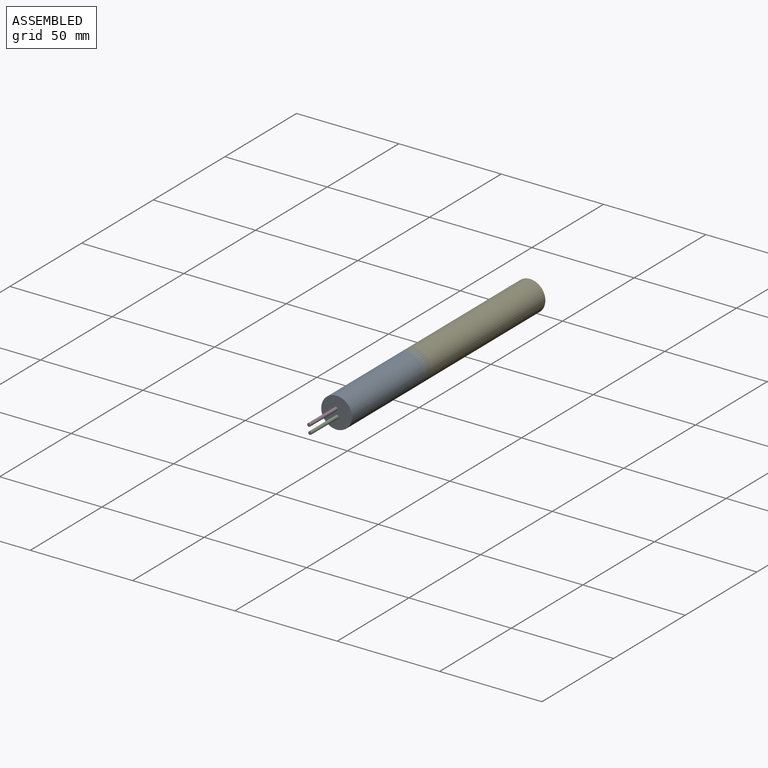
[diagram: assembled view]
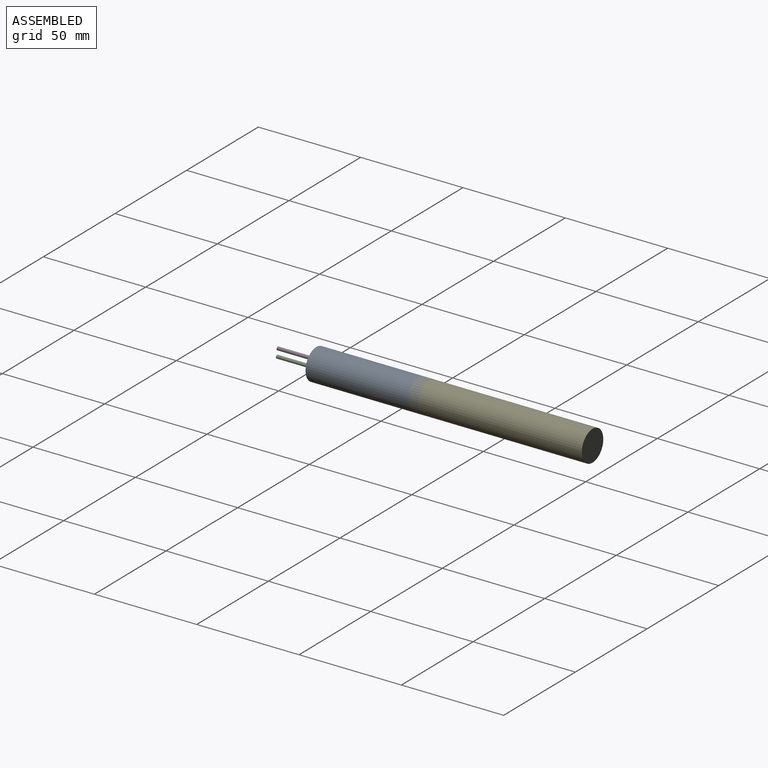
[diagram: assembled view, second angle]
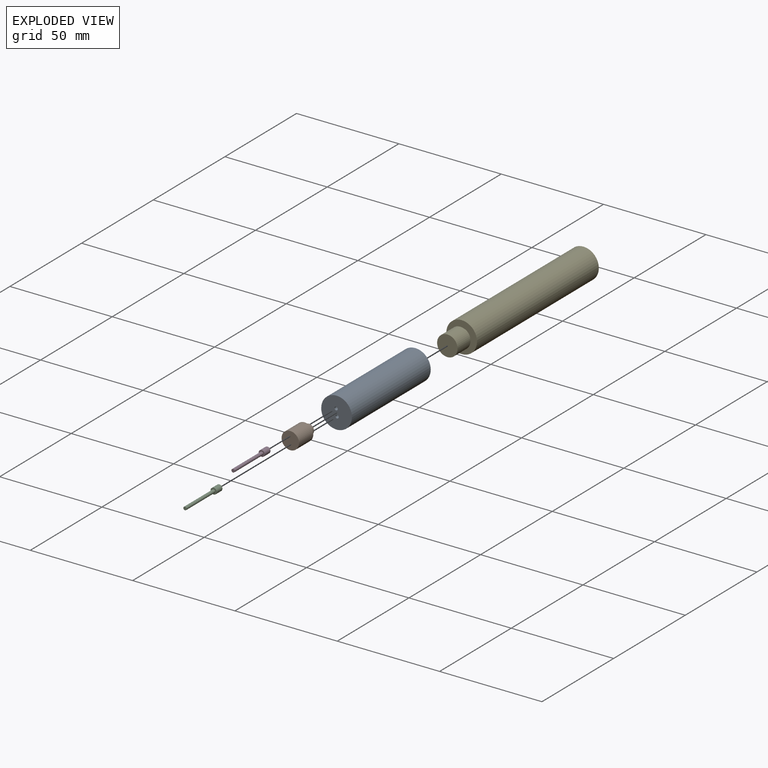
[diagram: exploded view]
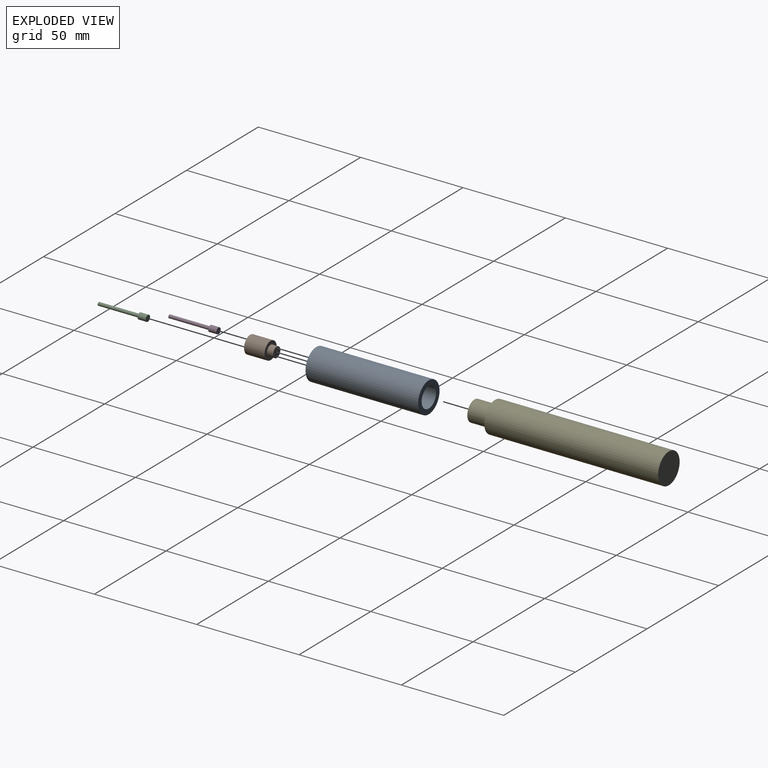
[diagram: exploded view, second angle]
ASSEMBLY  parts=5 mates=7
PART A: 9 faces, bbox 15x55x15 mm
  f0: cylinder r=4.25mm len=35mm, axis (0,1,0), area 934.6mm2, adj f6,f8
  f1: cylinder r=7.5mm len=55mm, axis (0,1,0), area 2591.8mm2, adj f2,f3
  f2: plane 15x15mm, normal (0,-1,0), area 172.7mm2, adj f1,f4,f5
  f3: plane 15x15mm, normal (0,1,0), area 98.2mm2, adj f1,f7
  f4: cylinder r=0.8mm len=5mm, axis (0,-1,0), area 25.1mm2, adj f2,f6
  f5: cylinder r=0.8mm len=5mm, axis (0,-1,0), area 25.1mm2, adj f2,f6
  f6: plane 8.5x8.5mm, normal (0,1,0), area 52.7mm2, adj f0,f4,f5
  f7: cylinder r=5mm len=15mm, axis (0,1,0), area 471.2mm2, adj f3,f8
  f8: plane 10x10mm, normal (0,1,0), area 21.8mm2, adj f0,f7
PART B: 5 faces, bbox 8.5x13x8.5 mm
  f0: cylinder r=4.25mm len=10mm, axis (0,1,0), area 267mm2, adj f1,f2
  f1: plane 8.5x8.5mm, normal (0,-1,0), area 37.1mm2, adj f0,f3
  f2: plane 8.5x8.5mm, normal (0,1,0), area 56.7mm2, adj f0
  f3: cylinder r=2.5mm len=5mm, axis (0,1,0), area 47.1mm2, adj f1,f4
  f4: plane 5x5mm, normal (0,-1,0), area 19.6mm2, adj f3
PART C: 5 faces, bbox 3x24x3 mm
  f0: cylinder r=0.8mm len=20mm, axis (0,1,0), area 100.5mm2, adj f1,f4
  f1: plane 1.6x1.6mm, normal (0,-1,0), area 2mm2, adj f0
  f2: cylinder r=1.5mm len=4mm, axis (0,-1,0), area 37.7mm2, adj f3,f4
  f3: plane 3x3mm, normal (0,1,0), area 7.1mm2, adj f2
  f4: plane 3x3mm, normal (0,-1,0), area 5.1mm2, adj f0,f2
PART D: same geometry as C
PART E: 7 faces, bbox 15x95x15 mm
  f0: cylinder r=7.5mm len=85mm, axis (0,1,0), area 4005.5mm2, adj f1,f2
  f1: plane 15x15mm, normal (0,-1,0), area 120mm2, adj f0,f3
  f2: plane 15x15mm, normal (0,1,0), area 176.7mm2, adj f0
  f3: cylinder r=4.25mm len=8.5mm, axis (0,1,0), area 26.7mm2, adj f1,f6
  f4: cylinder r=5mm len=10mm, axis (0,1,0), area 282.7mm2, adj f5,f6
  f5: plane 10x10mm, normal (0,-1,0), area 78.5mm2, adj f4
  f6: plane 10x10mm, normal (0,1,0), area 21.8mm2, adj f3,f4
PLACE A rot(axis=(0,1,0),82.4deg) t=(37.76,64.81,-23.86)mm
PLACE B rot(axis=(0.75,0,-0.66),180deg) t=(37.76,14.81,-23.86)mm
PLACE C t=(38,10.81,-25.59)mm
PLACE D t=(37.53,10.81,-22.12)mm
PLACE E t=(37.76,144.81,-23.86)mm
MATE planar D.f2 <-> B.f0  axis (0,1,0) through (37.53,14.81,-22.12)mm
MATE slider B.f0 <-> A.f0  axis (0,-1,0) through (37.76,14.81,-23.86)mm
MATE revolute E.f4 <-> A.f0  axis (0,-1,0) through (37.76,49.81,-23.86)mm
MATE planar B.f0 <-> C.f2  axis (0,-1,0) through (37.76,14.81,-23.86)mm
MATE cylindrical D.f0 <-> A.f5  axis (0,1,0) through (37.53,0.81,-22.12)mm
MATE cylindrical C.f0 <-> A.f4  axis (0,1,0) through (38,0.81,-25.59)mm
MATE planar A.f0 <-> C.f2  axis (0,1,0) through (37.76,14.81,-23.86)mm
